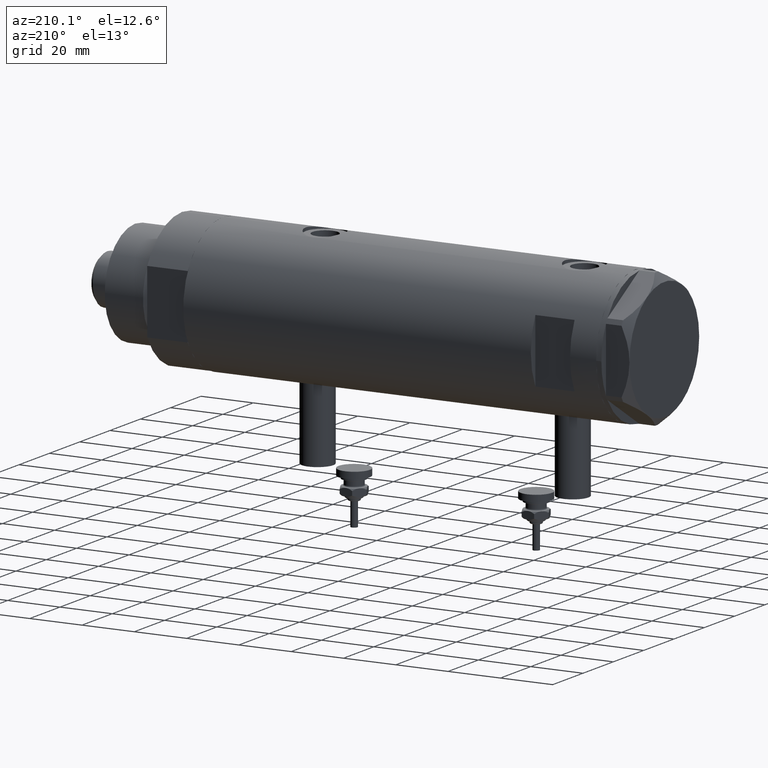
[diagram: clean part render]
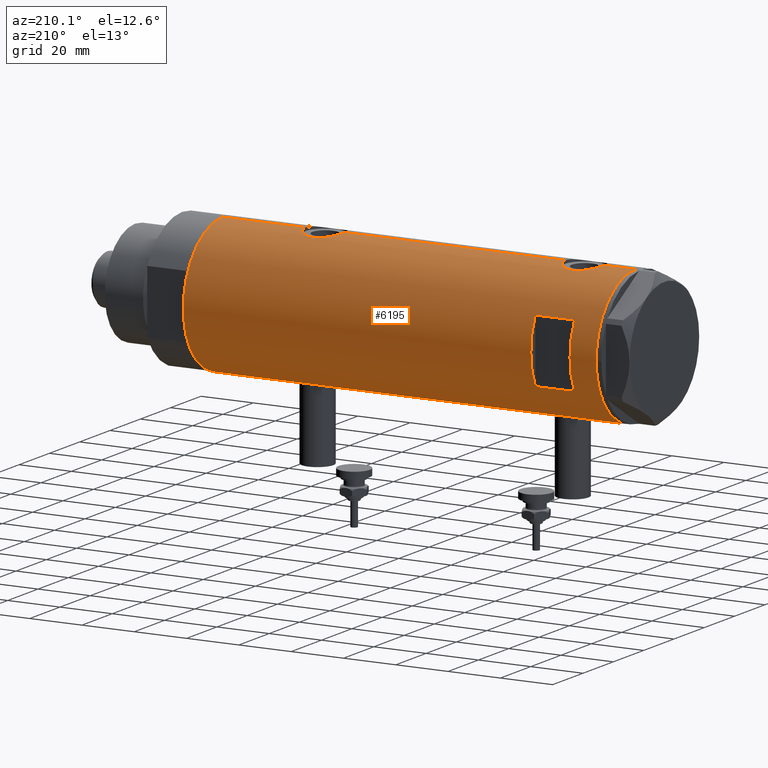
[diagram: same view with one face highlighted and labeled with its STEP entity id]
A machine part, auxiliary view. The second image highlights one B-rep face of the part: STEP entity #6195.
In plain terms, the highlighted cylindrical surface (partial cylindrical patch) has radius 26 mm, axis along (-1, -0, 0).
Its self-contained STEP definition (entity closure, byte-faithful):
#6 = EDGE_CURVE ( 'NONE', #2743, #2521, #5557, .T. ) ;
#20 = DIRECTION ( 'NONE',  ( 0.000000000000000000, 0.000000000000000000, 1.000000000000000000 ) ) ;
#38 = CARTESIAN_POINT ( 'NONE',  ( 25.78922176490237916, 3.335318700939509995, 52.71449431233524052 ) ) ;
#43 = CARTESIAN_POINT ( 'NONE',  ( -25.72105193281916513, 3.813738527046914406, -37.68166308900568140 ) ) ;
#60 = CARTESIAN_POINT ( 'NONE',  ( 24.96662810169869928, 7.257932614256870529, 61.40297309526737024 ) ) ;
#68 = CARTESIAN_POINT ( 'NONE',  ( 25.48882460966380847, 5.133289275481219605, 53.97656476402093517 ) ) ;
#72 = CARTESIAN_POINT ( 'NONE',  ( -25.42927140605242542, 5.422776733968219354, -39.51556003986718224 ) ) ;
#86 = DIRECTION ( 'NONE',  ( 0.000000000000000000, 0.000000000000000000, 1.000000000000000000 ) ) ;
#87 = CARTESIAN_POINT ( 'NONE',  ( 25.99652140603930661, 0.4914164889130520075, 66.93796820480456233 ) ) ;
#103 = CARTESIAN_POINT ( 'NONE',  ( -25.90661719257678541, 2.209805098346977914, -36.80011254218479166 ) ) ;
#106 = FACE_BOUND ( 'NONE', #5136, .T. ) ;
#132 = CIRCLE ( 'NONE', #637, 26.00000000000000355 ) ;
#138 = CARTESIAN_POINT ( 'NONE',  ( -26.00000000000000355, 3.184081677783118585E-15, -78.95000000000000284 ) ) ;
#141 = CARTESIAN_POINT ( 'NONE',  ( -25.38875076695534716, 5.605452563035134617, 52.17814099175896558 ) ) ;
#165 = CARTESIAN_POINT ( 'NONE',  ( -25.85406084573620689, 2.777003695811653738, 60.56412841326095275 ) ) ;
#196 = CARTESIAN_POINT ( 'NONE',  ( 25.52465069878074999, 4.952713637311402906, -45.38744860815256743 ) ) ;
#218 = VERTEX_POINT ( 'NONE', #2009 ) ;
#223 = CARTESIAN_POINT ( 'NONE',  ( -25.98789693408478385, 0.8193301824841990877, -48.84948980265347984 ) ) ;
#234 = CARTESIAN_POINT ( 'NONE',  ( 25.20855488770171959, 6.367749707222635891, -35.77997776959043108 ) ) ;
#261 = CARTESIAN_POINT ( 'NONE',  ( -25.57167265924276123, 4.701795585128874855, 50.82723711689968837 ) ) ;
#265 = CARTESIAN_POINT ( 'NONE',  ( 25.72923282622328855, 3.765147152416745246, -46.25485575784708914 ) ) ;
#288 = CARTESIAN_POINT ( 'NONE',  ( -25.92432690655987315, 2.018143994254076201, -48.57929422822716958 ) ) ;
#293 = CARTESIAN_POINT ( 'NONE',  ( 25.89067367629246164, 2.424883365422552561, -32.63594795494832113 ) ) ;
#328 = VECTOR ( 'NONE', #1125, 1000.000000000000000 ) ;
#354 = ORIENTED_EDGE ( 'NONE', *, *, #2913, .T. ) ;
#510 = AXIS2_PLACEMENT_3D ( 'NONE', #5363, #20, #3463 ) ;
#521 = CARTESIAN_POINT ( 'NONE',  ( 26.00000000000000355, -7.221007372182803218E-17, 51.95000000000000284 ) ) ;
#555 = CARTESIAN_POINT ( 'NONE',  ( -25.92257874449351007, 2.014648337067152184, -36.73003581636322679 ) ) ;
#569 = CARTESIAN_POINT ( 'NONE',  ( 25.52590365620543622, 4.955152228772147893, 65.10123727588241138 ) ) ;
#579 = CARTESIAN_POINT ( 'NONE',  ( -25.23766275406409321, 6.249830297096033327, -42.23808095444884714 ) ) ;
#593 = DIRECTION ( 'NONE',  ( -0.000000000000000000, -0.000000000000000000, -1.000000000000000000 ) ) ;
#602 = CARTESIAN_POINT ( 'NONE',  ( 24.97016856345952363, 7.245430721349218395, 57.49696959080608138 ) ) ;
#611 = CARTESIAN_POINT ( 'NONE',  ( -25.72105193281917224, 3.813738527046911297, 59.91833691099432713 ) ) ;
#622 = CARTESIAN_POINT ( 'NONE',  ( 26.00000000000000355, -3.975028449552882818E-20, 66.95000000000000284 ) ) ;
#625 = CARTESIAN_POINT ( 'NONE',  ( 25.00820649268566598, 7.115348876445588999, 61.87184000475453161 ) ) ;
#637 = AXIS2_PLACEMENT_3D ( 'NONE', #3128, #2247, #1782 ) ;
#645 = CARTESIAN_POINT ( 'NONE',  ( -25.33346170681504717, 5.849967696906719361, 57.15947052099508596 ) ) ;
#673 = CARTESIAN_POINT ( 'NONE',  ( -25.36894112891956610, 5.694149517195238985, -45.23482505198308701 ) ) ;
#675 = CARTESIAN_POINT ( 'NONE',  ( -25.92432690655986960, 2.018143994254070872, 49.02070577177285315 ) ) ;
#710 = CARTESIAN_POINT ( 'NONE',  ( 24.90976107960111818, 7.450765568638821890, -38.76117130648535181 ) ) ;
#739 = CARTESIAN_POINT ( 'NONE',  ( -25.90661719257679252, 2.209805098346976138, 60.79988745781522397 ) ) ;
#748 = CARTESIAN_POINT ( 'NONE',  ( 25.72868876879095623, 3.768709330223690479, -33.24732513129933409 ) ) ;
#766 = ORIENTED_EDGE ( 'NONE', *, *, #833, .T. ) ;
#775 = CARTESIAN_POINT ( 'NONE',  ( -25.95208098418916975, 1.628413954368978622, -48.69806792170717813 ) ) ;
#780 = CARTESIAN_POINT ( 'NONE',  ( 25.03487248886523986, 7.018875226450791871, -42.40423217392064714 ) ) ;
#816 = CARTESIAN_POINT ( 'NONE',  ( -26.00000000000000355, 3.184077527313362130E-15, 48.70000000000000995 ) ) ;
#833 = EDGE_CURVE ( 'NONE', #5029, #4062, #1242, .T. ) ;
#847 = LINE ( 'NONE', #5673, #2774 ) ;
#884 = EDGE_CURVE ( 'NONE', #218, #1162, #3973, .T. ) ;
#1007 = DIRECTION ( 'NONE',  ( 1.000000000000000000, 0.000000000000000000, 0.000000000000000000 ) ) ;
#1031 = CARTESIAN_POINT ( 'NONE',  ( 25.98569222077105678, 0.9879514382926382066, 51.99918153312441405 ) ) ;
#1056 = CARTESIAN_POINT ( 'NONE',  ( 24.89471231507667426, 7.500219916954786292, 59.93878226883027338 ) ) ;
#1091 = CARTESIAN_POINT ( 'NONE',  ( 24.90976107960111818, 7.450765568638821890, 60.43882869351467235 ) ) ;
#1114 = CARTESIAN_POINT ( 'NONE',  ( 25.98255381630415073, 0.9836221648041312271, 66.88933098058191717 ) ) ;
#1125 = DIRECTION ( 'NONE',  ( 0.000000000000000000, 0.000000000000000000, 1.000000000000000000 ) ) ;
#1126 = CARTESIAN_POINT ( 'NONE',  ( -26.00000000000000355, 0.2043916521038984246, -48.90000000000002700 ) ) ;
#1130 = CARTESIAN_POINT ( 'NONE',  ( -25.85449082491264861, 2.772892880050687126, 49.33390702514680015 ) ) ;
#1162 = VERTEX_POINT ( 'NONE', #3911 ) ;
#1166 = CARTESIAN_POINT ( 'NONE',  ( -25.43062364804612230, 5.412314182902757231, -45.78227648580933362 ) ) ;
#1170 = CARTESIAN_POINT ( 'NONE',  ( -25.92257874449351007, 2.014648337067150408, 60.86996418363676753 ) ) ;
#1175 = CARTESIAN_POINT ( 'NONE',  ( 25.94484652078418563, 1.709678645892020787, -47.05665346759175804 ) ) ;
#1209 = CARTESIAN_POINT ( 'NONE',  ( 25.78922176490237916, 3.335318700939508219, -46.48550568766475521 ) ) ;
#1240 = CARTESIAN_POINT ( 'NONE',  ( 25.52590365620542912, 4.955152228772147893, -34.09876272411761278 ) ) ;
#1242 = CIRCLE ( 'NONE', #510, 26.00000000000000355 ) ;
#1255 = B_SPLINE_CURVE_WITH_KNOTS ( 'NONE', 3,
 ( #5468, #2476, #1031, #3012, #4398, #3036, #3987, #38, #2006, #1531, #5406, #2980, #68, #3958, #5922, #4955, #5956, #3865, #4977, #602, #1467, #3392, #5346, #1056, #1091, #60, #625, #2086, #5941, #1589, #2027, #3531, #3002, #4383, #3442, #569, #5519, #4945, #3089, #4476, #4449, #5489, #1114, #87, #3502, #3057 ),
 .UNSPECIFIED., .F., .F.,
 ( 4, 2, 2, 2, 2, 2, 2, 2, 2, 2, 2, 2, 2, 2, 2, 2, 2, 2, 2, 2, 2, 2, 4 ),
 ( 7.012020075610059463E-20, 0.001473395154583048575, 0.002210092731874574272, 0.002946790309166099752, 0.004420185463749143340, 0.005156883041040665784, 0.005893580618332189096, 0.007366975772915219239, 0.008840370927498248516, 0.009577068504789763154, 0.01031376608208127779, 0.01178716123666430533, 0.01326055639124733287, 0.01473395154583036042, 0.01547064912312189240, 0.01620734670041342612, 0.01694404427770495464, 0.01768074185499648662, 0.01915413700957958529, 0.02062753216416268048, 0.02210092731874577221, 0.02283762489603732848, 0.02357432247332888128 ),
 .UNSPECIFIED. ) ;
#1260 = VECTOR ( 'NONE', #6079, 1000.000000000000000 ) ;
#1264 = CARTESIAN_POINT ( 'NONE',  ( 12.12435565298214080, 23.00000000000000355, -78.95000000000000284 ) ) ;
#1289 = CARTESIAN_POINT ( 'NONE',  ( 26.00000000000000355, 0.000000000000000000, 78.95000000000000284 ) ) ;
#1388 = VERTEX_POINT ( 'NONE', #2156 ) ;
#1456 = LINE ( 'NONE', #2276, #3813 ) ;
#1467 = CARTESIAN_POINT ( 'NONE',  ( 24.95233689475079331, 7.306396477445179727, 57.73896186853336587 ) ) ;
#1479 = EDGE_CURVE ( 'NONE', #4062, #1388, #2963, .T. ) ;
#1484 = VERTEX_POINT ( 'NONE', #622 ) ;
#1531 = CARTESIAN_POINT ( 'NONE',  ( 25.63006864069251023, 4.375159448492147440, 53.35345588241118264 ) ) ;
#1570 = CARTESIAN_POINT ( 'NONE',  ( -25.33346170681504006, 5.849967696906725578, -40.44052947900493677 ) ) ;
#1589 = CARTESIAN_POINT ( 'NONE',  ( 25.17636585680006434, 6.493453152855875210, 63.21099249662805164 ) ) ;
#1612 = ORIENTED_EDGE ( 'NONE', *, *, #3211, .T. ) ;
#1628 = CARTESIAN_POINT ( 'NONE',  ( -25.96182217530152769, 1.422664245316466847, -36.56064726907609952 ) ) ;
#1630 = CARTESIAN_POINT ( 'NONE',  ( -25.27696731428695998, 6.089059008147561514, 56.37416306959482171 ) ) ;
#1666 = CARTESIAN_POINT ( 'NONE',  ( 25.11254978876589306, 6.737777305585159304, -43.08025351746413634 ) ) ;
#1667 = CARTESIAN_POINT ( 'NONE',  ( 26.00000000000000355, 3.343657407582877388E-16, -47.25000000000000000 ) ) ;
#1693 = CARTESIAN_POINT ( 'NONE',  ( -25.45277932469922177, 5.307477387851101014, -45.95672800165312566 ) ) ;
#1695 = CARTESIAN_POINT ( 'NONE',  ( -25.99759026373432036, 0.4091325989570642196, 48.71000109955099333 ) ) ;
#1700 = ORIENTED_EDGE ( 'NONE', *, *, #5701, .F. ) ;
#1724 = CARTESIAN_POINT ( 'NONE',  ( -26.00000000000000355, 3.184077527313362130E-15, 48.70000000000000995 ) ) ;
#1730 = CARTESIAN_POINT ( 'NONE',  ( 26.00000000000000355, 0.000000000000000000, -78.95000000000000284 ) ) ;
#1757 = CARTESIAN_POINT ( 'NONE',  ( -25.96182217530152769, 1.422664245316465070, 61.03935273092390190 ) ) ;
#1762 = CARTESIAN_POINT ( 'NONE',  ( 24.97016856345952718, 7.245430721349219283, -41.70303040919392856 ) ) ;
#1763 = DIRECTION ( 'NONE',  ( 0.000000000000000000, 0.000000000000000000, 1.000000000000000000 ) ) ;
#1782 = DIRECTION ( 'NONE',  ( 0.000000000000000000, 1.000000000000000000, -4.536969091016264466E-15 ) ) ;
#1786 = AXIS2_PLACEMENT_3D ( 'NONE', #4448, #86, #3029 ) ;
#1791 = CARTESIAN_POINT ( 'NONE',  ( -25.98057228346869962, 1.024901789261879470, -48.81880585854828070 ) ) ;
#1892 = CARTESIAN_POINT ( 'NONE',  ( 26.00000000000000355, -3.975025925197986111E-20, -32.25000000000000000 ) ) ;
#1904 = VERTEX_POINT ( 'NONE', #4757 ) ;
#1919 = ORIENTED_EDGE ( 'NONE', *, *, #5965, .F. ) ;
#1935 = EDGE_CURVE ( 'NONE', #1904, #218, #847, .T. ) ;
#2006 = CARTESIAN_POINT ( 'NONE',  ( 25.72923282622329566, 3.765147152416745246, 52.94514424215292081 ) ) ;
#2009 = CARTESIAN_POINT ( 'NONE',  ( -12.12435565298214080, 23.00000000000000355, 68.95000000000003126 ) ) ;
#2027 = CARTESIAN_POINT ( 'NONE',  ( 25.20855488770172670, 6.367749707222635891, 63.42002223040960018 ) ) ;
#2037 = CARTESIAN_POINT ( 'NONE',  ( -25.38675822915648439, 5.615881323213576692, -39.87693218337989975 ) ) ;
#2086 = CARTESIAN_POINT ( 'NONE',  ( 25.08669247833292815, 6.831361936037320781, 62.55537739403792585 ) ) ;
#2124 = EDGE_CURVE ( 'NONE', #6223, #1484, #1255, .T. ) ;
#2128 = CARTESIAN_POINT ( 'NONE',  ( -25.52242378584899285, 4.965907353613394193, 58.76719602921738783 ) ) ;
#2150 = CARTESIAN_POINT ( 'NONE',  ( -25.99759026373433457, 0.4091325989570669952, -48.88999890044901520 ) ) ;
#2152 = VECTOR ( 'NONE', #5999, 1000.000000000000000 ) ;
#2153 = CARTESIAN_POINT ( 'NONE',  ( -25.36894112891956965, 5.694149517195234544, 52.36517494801690731 ) ) ;
#2156 = CARTESIAN_POINT ( 'NONE',  ( -26.00000000000000355, 3.184077527325983904E-15, -48.90000000000001279 ) ) ;
#2160 = CARTESIAN_POINT ( 'NONE',  ( 25.11550258961939974, 6.725017566862030449, -36.42071522193980826 ) ) ;
#2186 = CARTESIAN_POINT ( 'NONE',  ( -25.52275868012768711, 4.960454986366452879, -46.45761629406634796 ) ) ;
#2190 = CARTESIAN_POINT ( 'NONE',  ( -26.00000000000000711, 0.4145874687851189289, 61.20000000000001705 ) ) ;
#2196 = CARTESIAN_POINT ( 'NONE',  ( 25.27545867390324119, 6.096774941222088628, -35.37522593042034202 ) ) ;
#2197 = LINE ( 'NONE', #1730, #5746 ) ;
#2222 = CARTESIAN_POINT ( 'NONE',  ( -25.67176285215957066, 4.128807479817786508, -47.35991598451124673 ) ) ;
#2224 = CARTESIAN_POINT ( 'NONE',  ( -25.98057228346870673, 1.024901789261881913, 48.78119414145176336 ) ) ;
#2247 = DIRECTION ( 'NONE',  ( 0.000000000000000000, 4.625929269271486900E-15, 1.000000000000000000 ) ) ;
#2253 = CARTESIAN_POINT ( 'NONE',  ( -25.28673619335055989, 6.048783215285176595, -44.27550990348180449 ) ) ;
#2260 = CARTESIAN_POINT ( 'NONE',  ( 25.93077501166307641, 1.957027822413551332, -32.49302141437591729 ) ) ;
#2276 = CARTESIAN_POINT ( 'NONE',  ( 26.00000000000000355, 0.000000000000000000, -78.95000000000000284 ) ) ;
#2356 = VERTEX_POINT ( 'NONE', #4613 ) ;
#2361 = CARTESIAN_POINT ( 'NONE',  ( 26.00000000000000355, -3.975025925197986111E-20, -32.25000000000000000 ) ) ;
#2385 = DIRECTION ( 'NONE',  ( 0.000000000000000000, 0.000000000000000000, 1.000000000000000000 ) ) ;
#2391 = VERTEX_POINT ( 'NONE', #3217 ) ;
#2424 = ORIENTED_EDGE ( 'NONE', *, *, #2124, .F. ) ;
#2454 = ORIENTED_EDGE ( 'NONE', *, *, #1479, .T. ) ;
#2476 = CARTESIAN_POINT ( 'NONE',  ( 26.00000000000000711, 0.4983968644076020582, 51.95000000000000995 ) ) ;
#2515 = CARTESIAN_POINT ( 'NONE',  ( -25.67095236150573712, 4.133649689219794254, -37.94464771725741770 ) ) ;
#2521 = VERTEX_POINT ( 'NONE', #2361 ) ;
#2551 = DIRECTION ( 'NONE',  ( 1.000000000000000000, -5.329070518200751394E-15, 0.000000000000000000 ) ) ;
#2552 = CARTESIAN_POINT ( 'NONE',  ( -26.00000000000000355, 3.184081677783118585E-15, -78.95000000000000284 ) ) ;
#2571 = CARTESIAN_POINT ( 'NONE',  ( -25.23766275406409321, 6.249830297096026221, 55.36191904555118271 ) ) ;
#2597 = ORIENTED_EDGE ( 'NONE', *, *, #1935, .F. ) ;
#2601 = LINE ( 'NONE', #4112, #328 ) ;
#2606 = CARTESIAN_POINT ( 'NONE',  ( -25.99009688862344092, 0.8219492608955323298, 61.15915939226576370 ) ) ;
#2627 = CARTESIAN_POINT ( 'NONE',  ( -25.72087293759779314, 3.814831448865740438, -47.61738294827858908 ) ) ;
#2630 = CARTESIAN_POINT ( 'NONE',  ( -25.95208098418916620, 1.628413954368980399, 48.90193207829285882 ) ) ;
#2634 = CARTESIAN_POINT ( 'NONE',  ( 25.17424625143663164, 6.506691718592096940, -43.51241626033723975 ) ) ;
#2667 = CARTESIAN_POINT ( 'NONE',  ( 25.01140519645288762, 7.101774040639623919, -42.17392235700824443 ) ) ;
#2694 = AXIS2_PLACEMENT_3D ( 'NONE', #3044, #4961, #1007 ) ;
#2696 = CARTESIAN_POINT ( 'NONE',  ( -25.43062364804612230, 5.412314182902753679, 51.81772351419070333 ) ) ;
#2702 = CARTESIAN_POINT ( 'NONE',  ( 25.97197502027375293, 1.230965554787593730, -32.34759175501623218 ) ) ;
#2724 = CARTESIAN_POINT ( 'NONE',  ( -25.49884629689154281, 5.081547904122038162, -46.29439805696093657 ) ) ;
#2731 = CARTESIAN_POINT ( 'NONE',  ( 24.89471231507667071, 7.500219916954787180, -39.26121773116972236 ) ) ;
#2743 = VERTEX_POINT ( 'NONE', #1667 ) ;
#2774 = VECTOR ( 'NONE', #5767, 1000.000000000000000 ) ;
#2852 = EDGE_CURVE ( 'NONE', #5029, #2743, #2197, .T. ) ;
#2867 = CARTESIAN_POINT ( 'NONE',  ( -26.00000000000000355, -2.813058302341337106E-16, 61.20000000000000284 ) ) ;
#2885 = CARTESIAN_POINT ( 'NONE',  ( 25.99652140603931727, 0.4914164889130531177, -32.26203179519542630 ) ) ;
#2910 = ORIENTED_EDGE ( 'NONE', *, *, #884, .F. ) ;
#2913 = EDGE_CURVE ( 'NONE', #2391, #3827, #5798, .T. ) ;
#2951 = CYLINDRICAL_SURFACE ( 'NONE', #2694, 26.00000000000000355 ) ;
#2963 = LINE ( 'NONE', #2552, #2152 ) ;
#2980 = CARTESIAN_POINT ( 'NONE',  ( 25.52465069878074644, 4.952713637311400241, 53.81255139184744252 ) ) ;
#2985 = CARTESIAN_POINT ( 'NONE',  ( -26.00000000000000355, -6.335391871414786776E-16, -36.39999999999999858 ) ) ;
#2995 = B_SPLINE_CURVE_WITH_KNOTS ( 'NONE', 3,
 ( #3575, #2190, #2606, #1757, #4497, #1170, #739, #165, #3139, #611, #4115, #3542, #2128, #5023, #3168, #645, #4530, #4049, #1630, #5503, #2571, #5118, #3107, #6017, #6048, #2153, #141, #2696, #5634, #4024, #5059, #261, #5538, #5081, #5990, #6087, #1130, #675, #2630, #2224, #4557, #1695, #4140, #1724 ),
 .UNSPECIFIED., .F., .F.,
 ( 4, 2, 2, 2, 2, 2, 2, 2, 2, 2, 2, 2, 2, 2, 2, 2, 2, 2, 2, 2, 2, 4 ),
 ( 2.732276935479321607E-19, 0.001225774033668403139, 0.001838661050502602649, 0.002451548067336802375, 0.003677322101005202262, 0.004903096134673601281, 0.006128870168342001601, 0.007354644202010401054, 0.007967531218844600346, 0.008580418235678800506, 0.009806192269347199092, 0.01103196630301559768, 0.01225774033668399626, 0.01287062735351819469, 0.01348351437035239485, 0.01409640138718659501, 0.01470928840402079343, 0.01593506243768920069, 0.01716083647135761142, 0.01838661050502602215, 0.01899949752186022578, 0.01961238453869442941 ),
 .UNSPECIFIED. ) ;
#3002 = CARTESIAN_POINT ( 'NONE',  ( 25.31017500740585291, 5.951503630041862891, 64.02049592637402498 ) ) ;
#3012 = CARTESIAN_POINT ( 'NONE',  ( 25.94484652078419273, 1.709678645892020343, 52.14334653240825190 ) ) ;
#3017 = CARTESIAN_POINT ( 'NONE',  ( -25.95015815577423623, 1.621168830448744380, -36.61041429560181371 ) ) ;
#3029 = DIRECTION ( 'NONE',  ( 1.000000000000000000, 0.000000000000000000, 0.000000000000000000 ) ) ;
#3036 = CARTESIAN_POINT ( 'NONE',  ( 25.88814720404044323, 2.420758939209245231, 52.34711713171547132 ) ) ;
#3040 = CARTESIAN_POINT ( 'NONE',  ( -25.27696731428695642, 6.089059008147568619, -41.22583693040520103 ) ) ;
#3044 = CARTESIAN_POINT ( 'NONE',  ( 0.000000000000000000, 0.000000000000000000, -78.95000000000000284 ) ) ;
#3057 = CARTESIAN_POINT ( 'NONE',  ( 26.00000000000000355, -3.975028449552882818E-20, 66.95000000000000284 ) ) ;
#3089 = CARTESIAN_POINT ( 'NONE',  ( 25.78997056644824326, 3.329333406239038506, 66.18834808433845751 ) ) ;
#3099 = VERTEX_POINT ( 'NONE', #4981 ) ;
#3107 = CARTESIAN_POINT ( 'NONE',  ( -25.24784248027030031, 6.209126813737962713, 54.12731838311943022 ) ) ;
#3113 = CARTESIAN_POINT ( 'NONE',  ( 24.90951684770588415, 7.451587374037536016, -40.73395604521197555 ) ) ;
#3128 = CARTESIAN_POINT ( 'NONE',  ( 0.000000000000000000, 0.000000000000000000, 53.95000000000012363 ) ) ;
#3139 = CARTESIAN_POINT ( 'NONE',  ( -25.81251897318925614, 3.135439098787738743, 60.37199178085172235 ) ) ;
#3166 = CARTESIAN_POINT ( 'NONE',  ( -25.38875076695535071, 5.605452563035138169, -45.42185900824106426 ) ) ;
#3168 = CARTESIAN_POINT ( 'NONE',  ( -25.38675822915648084, 5.615881323213569587, 57.72306781662010877 ) ) ;
#3173 = CARTESIAN_POINT ( 'NONE',  ( 26.00000000000000711, 0.4983968644076025023, -47.25000000000000000 ) ) ;
#3209 = CARTESIAN_POINT ( 'NONE',  ( 25.48882460966380492, 5.133289275481218716, -45.22343523597909609 ) ) ;
#3211 = EDGE_CURVE ( 'NONE', #5982, #2356, #2601, .T. ) ;
#3217 = CARTESIAN_POINT ( 'NONE',  ( -26.00000000000000355, -6.335391871414786776E-16, -36.39999999999999858 ) ) ;
#3220 = ORIENTED_EDGE ( 'NONE', *, *, #5994, .F. ) ;
#3339 = ORIENTED_EDGE ( 'NONE', *, *, #4616, .F. ) ;
#3344 = EDGE_LOOP ( 'NONE', ( #766, #2454, #4118, #354, #5183, #1612, #5840, #1919, #2424, #3220, #6207, #4766 ) ) ;
#3392 = CARTESIAN_POINT ( 'NONE',  ( 24.90951684770588415, 7.451587374037535128, 58.46604395478803440 ) ) ;
#3442 = CARTESIAN_POINT ( 'NONE',  ( 25.41763780493360869, 5.474943943663453716, 64.58176313788939638 ) ) ;
#3463 = DIRECTION ( 'NONE',  ( 1.000000000000000000, 0.000000000000000000, 0.000000000000000000 ) ) ;
#3487 = CARTESIAN_POINT ( 'NONE',  ( -25.31738333113901618, 5.918941409682885180, -40.63242077527679186 ) ) ;
#3502 = CARTESIAN_POINT ( 'NONE',  ( 25.99999999999999645, 0.2455784580650495763, 66.94999999999998863 ) ) ;
#3531 = CARTESIAN_POINT ( 'NONE',  ( 25.27545867390324474, 6.096774941222085964, 63.82477406957966082 ) ) ;
#3540 = CARTESIAN_POINT ( 'NONE',  ( -25.28915991580759481, 6.038390257328916988, -41.02447348853093700 ) ) ;
#3542 = CARTESIAN_POINT ( 'NONE',  ( -25.57189498399055338, 4.707763994471528157, 59.08090281055547166 ) ) ;
#3575 = CARTESIAN_POINT ( 'NONE',  ( -26.00000000000000355, -2.813058302341337106E-16, 61.20000000000000284 ) ) ;
#3582 = CARTESIAN_POINT ( 'NONE',  ( 24.95233689475079331, 7.306396477445179727, -41.46103813146665829 ) ) ;
#3653 = CARTESIAN_POINT ( 'NONE',  ( 25.31017500740584936, 5.951503630041857562, -35.17950407362597076 ) ) ;
#3721 = CARTESIAN_POINT ( 'NONE',  ( 25.38117076385348625, 5.641057083563588037, -34.80143420258151110 ) ) ;
#3751 = DIRECTION ( 'NONE',  ( 0.000000000000000000, 0.000000000000000000, 1.000000000000000000 ) ) ;
#3813 = VECTOR ( 'NONE', #4321, 1000.000000000000000 ) ;
#3827 = VERTEX_POINT ( 'NONE', #816 ) ;
#3865 = CARTESIAN_POINT ( 'NONE',  ( 25.03487248886523986, 7.018875226450790095, 56.79576782607936281 ) ) ;
#3911 = CARTESIAN_POINT ( 'NONE',  ( 12.12435565298214080, 23.00000000000000355, 68.95000000000003126 ) ) ;
#3958 = CARTESIAN_POINT ( 'NONE',  ( 25.38132706741445688, 5.649034551923787895, 54.49268047185956476 ) ) ;
#3973 = CIRCLE ( 'NONE', #4783, 26.00000000000000355 ) ;
#3987 = CARTESIAN_POINT ( 'NONE',  ( 25.86510134953875450, 2.654921787384014298, 52.43132938305096502 ) ) ;
#3994 = CARTESIAN_POINT ( 'NONE',  ( -25.24784248027029676, 6.209126813737969819, -43.47268161688059251 ) ) ;
#4020 = CARTESIAN_POINT ( 'NONE',  ( 26.00000000000000355, 0.000000000000000000, -78.95000000000000284 ) ) ;
#4024 = CARTESIAN_POINT ( 'NONE',  ( -25.49884629689154281, 5.081547904122033721, 51.30560194303910748 ) ) ;
#4049 = CARTESIAN_POINT ( 'NONE',  ( -25.28915991580759837, 6.038390257328908106, 56.57552651146907152 ) ) ;
#4062 = VERTEX_POINT ( 'NONE', #138 ) ;
#4112 = CARTESIAN_POINT ( 'NONE',  ( -26.00000000000000355, 3.184081677783118585E-15, -78.95000000000000284 ) ) ;
#4115 = CARTESIAN_POINT ( 'NONE',  ( -25.67095236150574067, 4.133649689219791590, 59.65535228274259083 ) ) ;
#4118 = ORIENTED_EDGE ( 'NONE', *, *, #4130, .F. ) ;
#4119 = CARTESIAN_POINT ( 'NONE',  ( 25.38132706741445688, 5.649034551923786118, -44.70731952814045229 ) ) ;
#4130 = EDGE_CURVE ( 'NONE', #2391, #1388, #4152, .T. ) ;
#4137 = CARTESIAN_POINT ( 'NONE',  ( -25.85449082491263439, 2.772892880050690234, -48.26609297485322969 ) ) ;
#4140 = CARTESIAN_POINT ( 'NONE',  ( -25.99999999999999289, 0.2043916521039015888, 48.69999999999999574 ) ) ;
#4152 = B_SPLINE_CURVE_WITH_KNOTS ( 'NONE', 3,
 ( #2985, #5986, #4928, #1628, #3017, #555, #103, #4887, #4366, #43, #2515, #4432, #4959, #72, #2037, #1570, #3487, #3540, #3040, #5447, #579, #4461, #3994, #2253, #4166, #673, #3166, #1166, #1693, #2724, #2186, #4661, #6144, #2222, #2627, #5499, #4137, #288, #775, #1791, #223, #2150, #1126, #6110 ),
 .UNSPECIFIED., .F., .F.,
 ( 4, 2, 2, 2, 2, 2, 2, 2, 2, 2, 2, 2, 2, 2, 2, 2, 2, 2, 2, 2, 2, 4 ),
 ( 6.153461189582338581E-19, 0.001225774033668418535, 0.001838661050502624550, 0.002451548067336830564, 0.003677322101005242594, 0.004903096134673655924, 0.006128870168342067520, 0.007354644202010479984, 0.007967531218844674940, 0.008580418235678871630, 0.009806192269347263277, 0.01103196630301565666, 0.01225774033668404657, 0.01287062735351824326, 0.01348351437035243995, 0.01409640138718663491, 0.01470928840402082986, 0.01593506243768923539, 0.01716083647135764612, 0.01838661050502604991, 0.01899949752186025353, 0.01961238453869445370 ),
 .UNSPECIFIED. ) ;
#4166 = CARTESIAN_POINT ( 'NONE',  ( -25.31518616157687873, 5.930210831981644226, -44.66587117207026836 ) ) ;
#4173 = CARTESIAN_POINT ( 'NONE',  ( 25.92799636947105313, 1.948138538329397651, -46.99677687788213376 ) ) ;
#4302 = CARTESIAN_POINT ( 'NONE',  ( 26.00000000000000000, 0.2455784580650491877, -32.25000000000000000 ) ) ;
#4321 = DIRECTION ( 'NONE',  ( 0.000000000000000000, 0.000000000000000000, 1.000000000000000000 ) ) ;
#4366 = CARTESIAN_POINT ( 'NONE',  ( -25.81251897318926680, 3.135439098787741852, -37.22800821914827907 ) ) ;
#4376 = VERTEX_POINT ( 'NONE', #1289 ) ;
#4383 = CARTESIAN_POINT ( 'NONE',  ( 25.38117076385348270, 5.641057083563592478, 64.39856579741849885 ) ) ;
#4398 = CARTESIAN_POINT ( 'NONE',  ( 25.92799636947106023, 1.948138538329397873, 52.20322312211786908 ) ) ;
#4432 = CARTESIAN_POINT ( 'NONE',  ( -25.57189498399056049, 4.707763994471534374, -38.51909718944452266 ) ) ;
#4448 = CARTESIAN_POINT ( 'NONE',  ( 0.000000000000000000, 0.000000000000000000, 78.95000000000000284 ) ) ;
#4449 = CARTESIAN_POINT ( 'NONE',  ( 25.93077501166307286, 1.957027822413553109, 66.70697858562409976 ) ) ;
#4461 = CARTESIAN_POINT ( 'NONE',  ( -25.23757896588369221, 6.250168635417630902, -43.05675308410503987 ) ) ;
#4476 = CARTESIAN_POINT ( 'NONE',  ( 25.89067367629246164, 2.424883365422551229, 66.56405204505169593 ) ) ;
#4497 = CARTESIAN_POINT ( 'NONE',  ( -25.95015815577423268, 1.621168830448741938, 60.98958570439820193 ) ) ;
#4530 = CARTESIAN_POINT ( 'NONE',  ( -25.31738333113901973, 5.918941409682879851, 56.96757922472323799 ) ) ;
#4557 = CARTESIAN_POINT ( 'NONE',  ( -25.98789693408479451, 0.8193301824841956460, 48.75051019734655000 ) ) ;
#4560 = CARTESIAN_POINT ( 'NONE',  ( 24.96662810169869573, 7.257932614256868753, -37.79702690473265392 ) ) ;
#4580 = LINE ( 'NONE', #1264, #1260 ) ;
#4599 = CARTESIAN_POINT ( 'NONE',  ( 25.00820649268565887, 7.115348876445586335, -37.32815999524549966 ) ) ;
#4613 = CARTESIAN_POINT ( 'NONE',  ( -26.00000000000000355, 3.184081677783118585E-15, 78.95000000000000284 ) ) ;
#4616 = EDGE_CURVE ( 'NONE', #1162, #3099, #4580, .T. ) ;
#4637 = CARTESIAN_POINT ( 'NONE',  ( 25.30960479024496479, 5.958491152160522830, -44.33139677679962887 ) ) ;
#4661 = CARTESIAN_POINT ( 'NONE',  ( -25.57167265924275412, 4.701795585128879296, -46.77276288310034147 ) ) ;
#4666 = CARTESIAN_POINT ( 'NONE',  ( 25.78997056644824326, 3.329333406239038951, -33.01165191566153823 ) ) ;
#4757 = CARTESIAN_POINT ( 'NONE',  ( -12.12435565298214080, 23.00000000000000355, 53.95000000000002416 ) ) ;
#4766 = ORIENTED_EDGE ( 'NONE', *, *, #2852, .F. ) ;
#4783 = AXIS2_PLACEMENT_3D ( 'NONE', #5427, #593, #2551 ) ;
#4887 = CARTESIAN_POINT ( 'NONE',  ( -25.85406084573621754, 2.777003695811657735, -37.03587158673904156 ) ) ;
#4928 = CARTESIAN_POINT ( 'NONE',  ( -25.99009688862344447, 0.8219492608955337731, -36.44084060773424483 ) ) ;
#4938 = EDGE_CURVE ( 'NONE', #4376, #2356, #5438, .T. ) ;
#4945 = CARTESIAN_POINT ( 'NONE',  ( 25.72868876879096334, 3.768709330223684706, 65.95267486870066875 ) ) ;
#4955 = CARTESIAN_POINT ( 'NONE',  ( 25.17424625143663164, 6.506691718592099605, 55.68758373966277020 ) ) ;
#4959 = CARTESIAN_POINT ( 'NONE',  ( -25.52242378584899640, 4.965907353613397746, -38.83280397078262780 ) ) ;
#4961 = DIRECTION ( 'NONE',  ( 0.000000000000000000, 0.000000000000000000, 1.000000000000000000 ) ) ;
#4977 = CARTESIAN_POINT ( 'NONE',  ( 25.01140519645288762, 7.101774040639622143, 57.02607764299175130 ) ) ;
#4981 = CARTESIAN_POINT ( 'NONE',  ( 12.12435565298213724, 23.00000000000000355, 53.95000000000002416 ) ) ;
#5023 = CARTESIAN_POINT ( 'NONE',  ( -25.42927140605241121, 5.422776733968213136, 58.08443996013282629 ) ) ;
#5029 = VERTEX_POINT ( 'NONE', #4020 ) ;
#5059 = CARTESIAN_POINT ( 'NONE',  ( -25.52275868012767646, 4.960454986366448438, 51.14238370593368899 ) ) ;
#5063 = CARTESIAN_POINT ( 'NONE',  ( 25.08669247833291749, 6.831361936037321669, -36.64462260596211252 ) ) ;
#5081 = CARTESIAN_POINT ( 'NONE',  ( -25.67176285215957421, 4.128807479817785620, 50.24008401548878311 ) ) ;
#5085 = CARTESIAN_POINT ( 'NONE',  ( 26.00000000000000355, 3.343657407582877388E-16, -47.25000000000000000 ) ) ;
#5118 = CARTESIAN_POINT ( 'NONE',  ( -25.23757896588370286, 6.250168635417627350, 54.54324691589500418 ) ) ;
#5121 = VECTOR ( 'NONE', #2385, 1000.000000000000000 ) ;
#5125 = CARTESIAN_POINT ( 'NONE',  ( 25.59685363299823280, 4.579266302355748053, -33.79027931897348225 ) ) ;
#5136 = EDGE_LOOP ( 'NONE', ( #2597, #1700, #3339, #2910 ) ) ;
#5158 = CARTESIAN_POINT ( 'NONE',  ( 25.86510134953875450, 2.654921787384013854, -46.76867061694904493 ) ) ;
#5183 = ORIENTED_EDGE ( 'NONE', *, *, #6257, .F. ) ;
#5256 = CARTESIAN_POINT ( 'NONE',  ( -26.00000000000000355, 3.184081677783118585E-15, -78.95000000000000284 ) ) ;
#5346 = CARTESIAN_POINT ( 'NONE',  ( 24.89484527721569052, 7.499778575171895056, 58.95449194517063773 ) ) ;
#5363 = CARTESIAN_POINT ( 'NONE',  ( 0.000000000000000000, 0.000000000000000000, -78.95000000000000284 ) ) ;
#5406 = CARTESIAN_POINT ( 'NONE',  ( 25.59528664075984494, 4.573671112500300673, 53.50090496483274904 ) ) ;
#5427 = CARTESIAN_POINT ( 'NONE',  ( 0.000000000000000000, 0.000000000000000000, 68.95000000000003126 ) ) ;
#5438 = CIRCLE ( 'NONE', #1786, 26.00000000000000355 ) ;
#5447 = CARTESIAN_POINT ( 'NONE',  ( -25.24766879991037527, 6.209837761082662055, -41.83150430970304967 ) ) ;
#5468 = CARTESIAN_POINT ( 'NONE',  ( 26.00000000000000355, -7.221007372182803218E-17, 51.95000000000000284 ) ) ;
#5489 = CARTESIAN_POINT ( 'NONE',  ( 25.97197502027376004, 1.230965554787596394, 66.85240824498376355 ) ) ;
#5499 = CARTESIAN_POINT ( 'NONE',  ( -25.81206132723604441, 3.139065735901513055, -48.06978769360877379 ) ) ;
#5503 = CARTESIAN_POINT ( 'NONE',  ( -25.24766879991037172, 6.209837761082653174, 55.76849569029696596 ) ) ;
#5519 = CARTESIAN_POINT ( 'NONE',  ( 25.59685363299822924, 4.579266302355740947, 65.40972068102654191 ) ) ;
#5538 = CARTESIAN_POINT ( 'NONE',  ( -25.59680708126580129, 4.563450671387941249, 50.67456050020032876 ) ) ;
#5545 = CARTESIAN_POINT ( 'NONE',  ( 24.89484527721569052, 7.499778575171895056, -40.24550805482936511 ) ) ;
#5557 = B_SPLINE_CURVE_WITH_KNOTS ( 'NONE', 3,
 ( #5085, #3173, #6116, #1175, #4173, #6023, #5158, #1209, #265, #6153, #6091, #196, #3209, #4119, #4637, #2634, #1666, #780, #2667, #1762, #3582, #3113, #5545, #2731, #710, #4560, #4599, #5063, #2160, #6052, #234, #2196, #3653, #3721, #5608, #1240, #5125, #748, #4666, #293, #2260, #2702, #5675, #2885, #4302, #1892 ),
 .UNSPECIFIED., .F., .F.,
 ( 4, 2, 2, 2, 2, 2, 2, 2, 2, 2, 2, 2, 2, 2, 2, 2, 2, 2, 2, 2, 2, 2, 4 ),
 ( 3.246886709775799722E-19, 0.001473395154583074379, 0.002210092731874609400, 0.002946790309166144421, 0.004420185463749214463, 0.005156883041040750786, 0.005893580618332287108, 0.007366975772915358017, 0.008840370927498430662, 0.009577068504789955708, 0.01031376608208147902, 0.01178716123666452911, 0.01326055639124757921, 0.01473395154583062930, 0.01547064912312214567, 0.01620734670041366204, 0.01694404427770517668, 0.01768074185499669479, 0.01915413700957973794, 0.02062753216416278457, 0.02210092731874583119, 0.02283762489603735277, 0.02357432247332888128 ),
 .UNSPECIFIED. ) ;
#5608 = CARTESIAN_POINT ( 'NONE',  ( 25.41763780493360514, 5.474943943663457269, -34.61823686211066331 ) ) ;
#5634 = CARTESIAN_POINT ( 'NONE',  ( -25.45277932469921822, 5.307477387851097461, 51.64327199834691129 ) ) ;
#5673 = CARTESIAN_POINT ( 'NONE',  ( -12.12435565298214080, 23.00000000000000355, -78.95000000000000284 ) ) ;
#5675 = CARTESIAN_POINT ( 'NONE',  ( 25.98255381630415783, 0.9836221648041303389, -32.31066901941808567 ) ) ;
#5701 = EDGE_CURVE ( 'NONE', #3099, #1904, #132, .T. ) ;
#5746 = VECTOR ( 'NONE', #1763, 1000.000000000000000 ) ;
#5767 = DIRECTION ( 'NONE',  ( 0.000000000000000000, 0.000000000000000000, 1.000000000000000000 ) ) ;
#5798 = LINE ( 'NONE', #5256, #5121 ) ;
#5840 = ORIENTED_EDGE ( 'NONE', *, *, #4938, .F. ) ;
#5922 = CARTESIAN_POINT ( 'NONE',  ( 25.30960479024496834, 5.958491152160525495, 54.86860322320039529 ) ) ;
#5929 = FACE_OUTER_BOUND ( 'NONE', #3344, .T. ) ;
#5941 = CARTESIAN_POINT ( 'NONE',  ( 25.11550258961940330, 6.725017566862032226, 62.77928477806020169 ) ) ;
#5956 = CARTESIAN_POINT ( 'NONE',  ( 25.11254978876589661, 6.737777305585160192, 56.11974648253588782 ) ) ;
#5965 = EDGE_CURVE ( 'NONE', #1484, #4376, #1456, .T. ) ;
#5982 = VERTEX_POINT ( 'NONE', #2867 ) ;
#5986 = CARTESIAN_POINT ( 'NONE',  ( -26.00000000000001066, 0.4145874687851193729, -36.40000000000000568 ) ) ;
#5990 = CARTESIAN_POINT ( 'NONE',  ( -25.72087293759780380, 3.814831448865741770, 49.98261705172143365 ) ) ;
#5994 = EDGE_CURVE ( 'NONE', #2521, #6223, #6252, .T. ) ;
#5999 = DIRECTION ( 'NONE',  ( 0.000000000000000000, 0.000000000000000000, 1.000000000000000000 ) ) ;
#6017 = CARTESIAN_POINT ( 'NONE',  ( -25.28673619335055278, 6.048783215285168602, 53.32449009651820404 ) ) ;
#6023 = CARTESIAN_POINT ( 'NONE',  ( 25.88814720404043968, 2.420758939209242566, -46.85288286828453863 ) ) ;
#6048 = CARTESIAN_POINT ( 'NONE',  ( -25.31518616157687163, 5.930210831981637121, 52.93412882792974017 ) ) ;
#6052 = CARTESIAN_POINT ( 'NONE',  ( 25.17636585680005723, 6.493453152855874322, -35.98900750337197962 ) ) ;
#6079 = DIRECTION ( 'NONE',  ( -0.000000000000000000, -0.000000000000000000, -1.000000000000000000 ) ) ;
#6087 = CARTESIAN_POINT ( 'NONE',  ( -25.81206132723605506, 3.139065735901517495, 49.53021230639125605 ) ) ;
#6091 = CARTESIAN_POINT ( 'NONE',  ( 25.59528664075983428, 4.573671112500298896, -45.69909503516725380 ) ) ;
#6110 = CARTESIAN_POINT ( 'NONE',  ( -26.00000000000000355, 3.184077527325983904E-15, -48.90000000000001279 ) ) ;
#6116 = CARTESIAN_POINT ( 'NONE',  ( 25.98569222077104968, 0.9879514382926379845, -47.20081846687561011 ) ) ;
#6144 = CARTESIAN_POINT ( 'NONE',  ( -25.59680708126580129, 4.563450671387943913, -46.92543949979972240 ) ) ;
#6153 = CARTESIAN_POINT ( 'NONE',  ( 25.63006864069249602, 4.375159448492148329, -45.84654411758881309 ) ) ;
#6158 = CARTESIAN_POINT ( 'NONE',  ( 26.00000000000000355, 0.000000000000000000, -78.95000000000000284 ) ) ;
#6168 = VECTOR ( 'NONE', #3751, 1000.000000000000000 ) ;
#6195 = ADVANCED_FACE ( 'NONE', ( #106, #5929 ), #2951, .T. ) ;
#6207 = ORIENTED_EDGE ( 'NONE', *, *, #6, .F. ) ;
#6223 = VERTEX_POINT ( 'NONE', #521 ) ;
#6252 = LINE ( 'NONE', #6158, #6168 ) ;
#6257 = EDGE_CURVE ( 'NONE', #5982, #3827, #2995, .T. ) ;